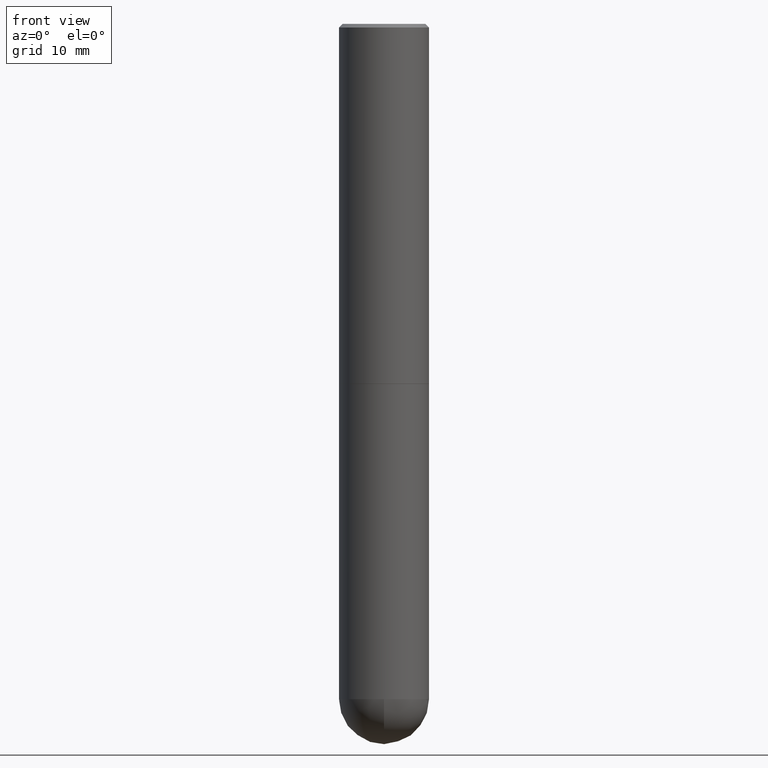
[diagram: clean part render]
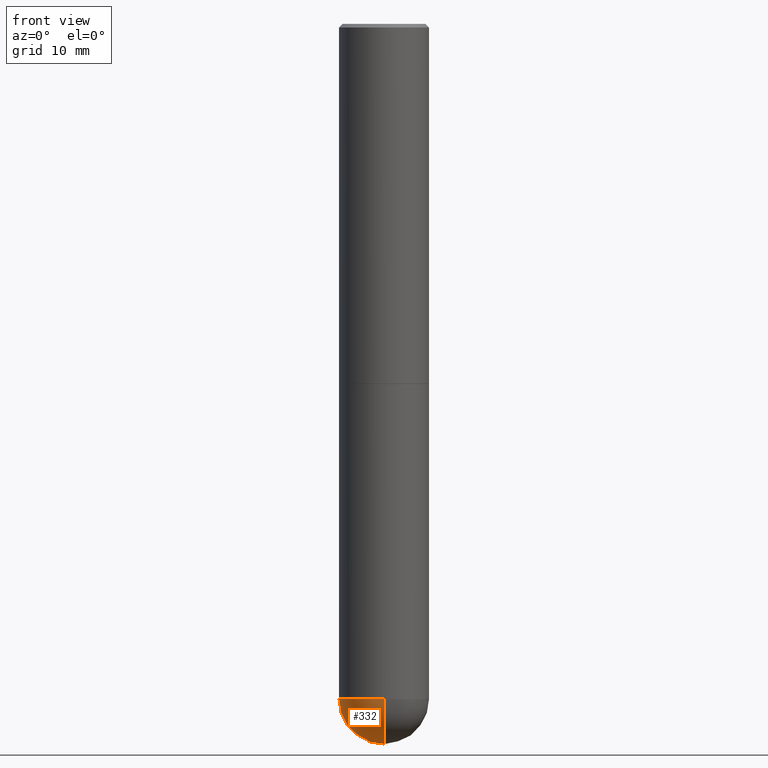
[diagram: same view with one face highlighted and labeled with its STEP entity id]
A machine part, front view. The second image highlights one B-rep face of the part: STEP entity #332.
In plain terms, the highlighted spherical surface has radius 6.35 mm.
Its self-contained STEP definition (entity closure, byte-faithful):
#7 = SPHERICAL_SURFACE ( 'NONE', #397, 0.2500000000000001110 ) ;
#14 = DIRECTION ( 'NONE',  ( 6.982962677686266711E-15, 1.000000000000000000, 0.000000000000000000 ) ) ;
#22 = AXIS2_PLACEMENT_3D ( 'NONE', #327, #392, #47 ) ;
#46 = CARTESIAN_POINT ( 'NONE',  ( 8.839388245280375991E-29, -1.356723738880184771E-14, -3.750000000000000000 ) ) ;
#47 = DIRECTION ( 'NONE',  ( 1.000000000000000000, -6.982962677686262766E-15, 0.000000000000000000 ) ) ;
#48 = VERTEX_POINT ( 'NONE', #167 ) ;
#51 = DIRECTION ( 'NONE',  ( 1.000000000000000000, -6.982962677686265922E-15, 4.883557194083112340E-29 ) ) ;
#79 = VERTEX_POINT ( 'NONE', #164 ) ;
#85 = CIRCLE ( 'NONE', #22, 0.2500000000000000000 ) ;
#98 = DIRECTION ( 'NONE',  ( 6.982962677686265922E-15, 1.000000000000000000, -4.370956789862818783E-15 ) ) ;
#115 = DIRECTION ( 'NONE',  ( 1.000000000000000000, -6.982962677686262766E-15, 0.000000000000000000 ) ) ;
#119 = DIRECTION ( 'NONE',  ( -2.445468806185136597E-29, 3.491481338843145583E-15, 1.000000000000000000 ) ) ;
#136 = ORIENTED_EDGE ( 'NONE', *, *, #171, .F. ) ;
#153 = ORIENTED_EDGE ( 'NONE', *, *, #154, .F. ) ;
#154 = EDGE_CURVE ( 'NONE', #79, #213, #173, .T. ) ;
#156 = CARTESIAN_POINT ( 'NONE',  ( -1.776356839400160732E-15, -0.2500000000000133782, -3.749999999999999112 ) ) ;
#157 = AXIS2_PLACEMENT_3D ( 'NONE', #46, #270, #220 ) ;
#164 = CARTESIAN_POINT ( 'NONE',  ( -0.2500000000000000000, -8.261652009773795797E-15, -3.750000000000000000 ) ) ;
#167 = CARTESIAN_POINT ( 'NONE',  ( 1.745740669421657002E-15, 0.2499999999999867606, -3.750000000000001332 ) ) ;
#171 = EDGE_CURVE ( 'NONE', #258, #48, #393, .T. ) ;
#173 = CIRCLE ( 'NONE', #341, 0.2500000000000000000 ) ;
#209 = CARTESIAN_POINT ( 'NONE',  ( 9.461445025441403338E-29, -1.442479963852329389E-14, -4.000000000000000888 ) ) ;
#212 = CARTESIAN_POINT ( 'NONE',  ( 9.170508023194262238E-29, -1.309305502066179741E-14, -3.750000000000000000 ) ) ;
#213 = VERTEX_POINT ( 'NONE', #156 ) ;
#220 = DIRECTION ( 'NONE',  ( -7.105427357601001859E-15, -1.000000000000000000, 0.000000000000000000 ) ) ;
#258 = VERTEX_POINT ( 'NONE', #209 ) ;
#259 = EDGE_CURVE ( 'NONE', #258, #213, #307, .T. ) ;
#260 = FACE_OUTER_BOUND ( 'NONE', #312, .T. ) ;
#267 = ORIENTED_EDGE ( 'NONE', *, *, #259, .T. ) ;
#270 = DIRECTION ( 'NONE',  ( -1.000000000000000000, 7.105427357601001070E-15, -4.926315508542082329E-29 ) ) ;
#278 = AXIS2_PLACEMENT_3D ( 'NONE', #338, #51, #14 ) ;
#299 = EDGE_CURVE ( 'NONE', #48, #79, #85, .T. ) ;
#307 = CIRCLE ( 'NONE', #157, 0.2500000000000001110 ) ;
#312 = EDGE_LOOP ( 'NONE', ( #136, #267, #153, #391 ) ) ;
#327 = CARTESIAN_POINT ( 'NONE',  ( 9.170508023194262238E-29, -1.309305502066179741E-14, -3.750000000000000000 ) ) ;
#328 = CARTESIAN_POINT ( 'NONE',  ( 8.839388245280375991E-29, -1.356723738880184771E-14, -3.750000000000000000 ) ) ;
#332 = ADVANCED_FACE ( 'NONE', ( #260 ), #7, .T. ) ;
#338 = CARTESIAN_POINT ( 'NONE',  ( 8.839388245280375991E-29, -1.356723738880184771E-14, -3.750000000000000000 ) ) ;
#341 = AXIS2_PLACEMENT_3D ( 'NONE', #212, #119, #115 ) ;
#383 = DIRECTION ( 'NONE',  ( -1.000000000000000000, 6.982962677686265922E-15, -4.883557194083113462E-29 ) ) ;
#391 = ORIENTED_EDGE ( 'NONE', *, *, #299, .F. ) ;
#392 = DIRECTION ( 'NONE',  ( -2.445468806185136597E-29, 3.491481338843145583E-15, 1.000000000000000000 ) ) ;
#393 = CIRCLE ( 'NONE', #278, 0.2500000000000001110 ) ;
#397 = AXIS2_PLACEMENT_3D ( 'NONE', #328, #383, #98 ) ;